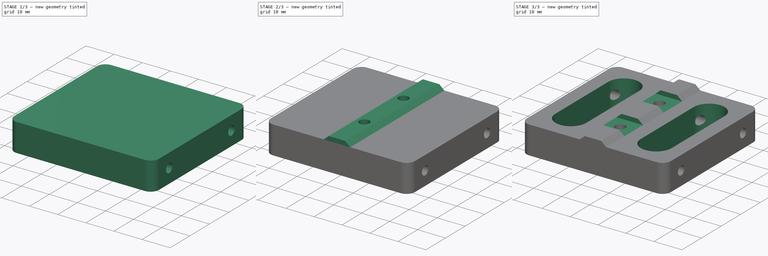
[diagram: build sequence overview — one tinted view per stage of 3, left to right]
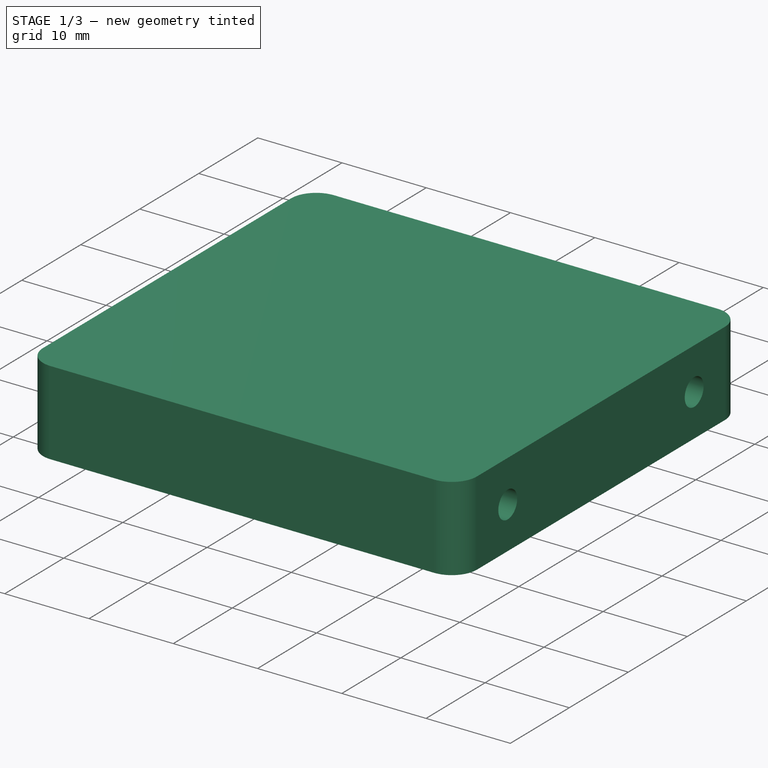
[diagram: stage 1 of 3 — iso view after this stage's code; geometry added in this stage tinted green]
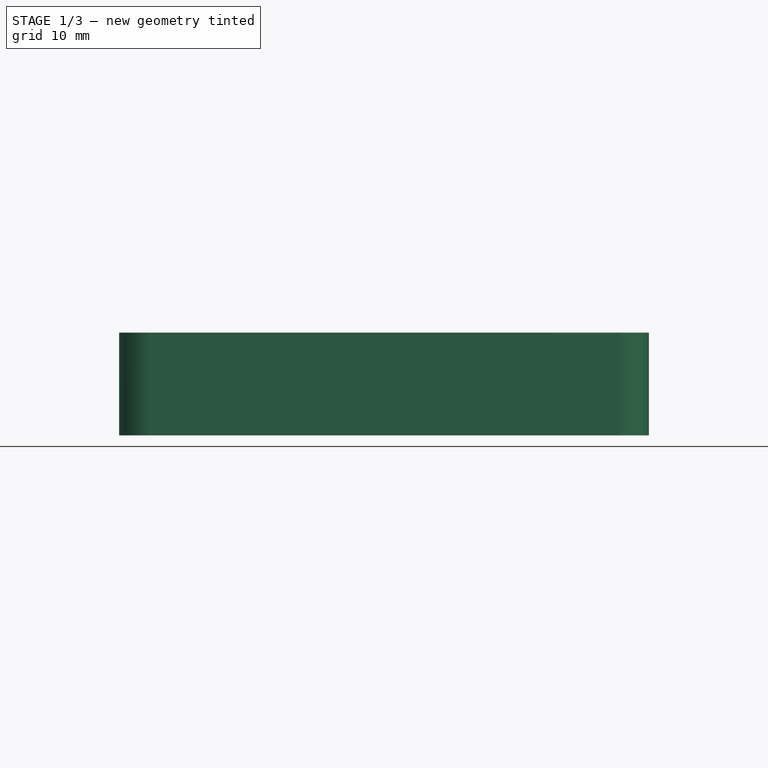
[diagram: stage 1 of 3 — front view after this stage's code; geometry added in this stage tinted green]
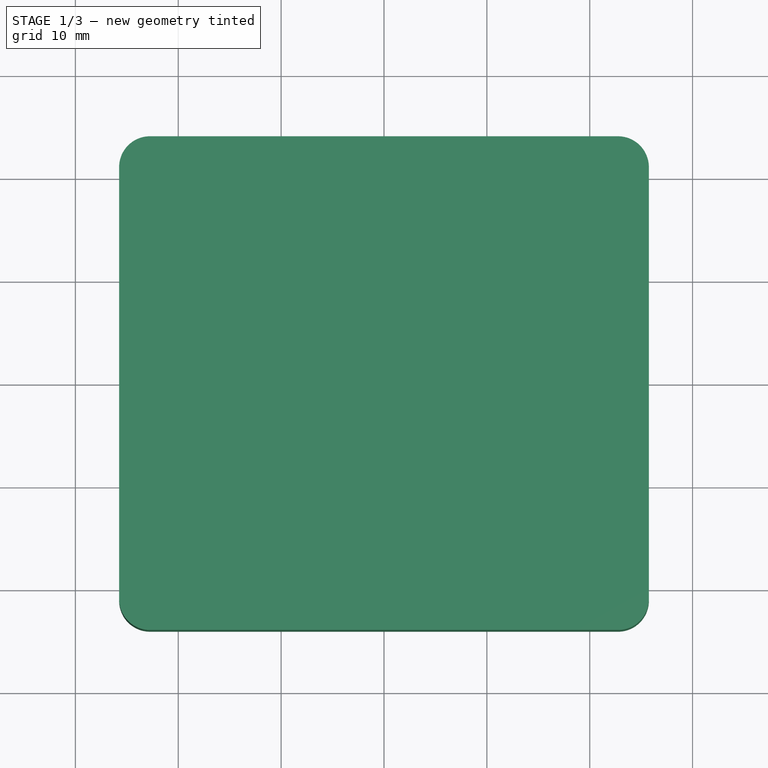
[diagram: stage 1 of 3 — top view after this stage's code; geometry added in this stage tinted green]
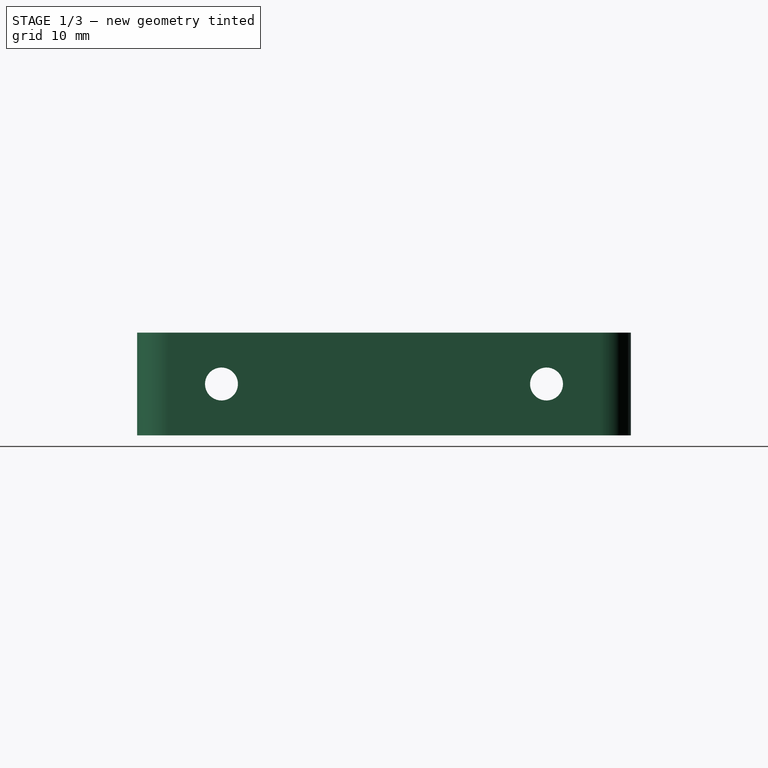
[diagram: stage 1 of 3 — right view after this stage's code; geometry added in this stage tinted green]
FCSTD DOCUMENT  (FreeCAD 1.0R39109 (Git))
Label: base-fixadora
License: All rights reserved
LicenseURL: https://en.wikipedia.org/wiki/All_rights_reserved
objects: Sketcher::SketchObject×8, PartDesign::Pocket×5, PartDesign::Pad×2, PartDesign::Fillet×1, PartDesign::Body×1
note: 41 computed .brp shape members not serialized (recipe doc carries the construction recipe); baked Part::Feature solids carry a one-line shape summary decoded from their .brp

FEATURE [Sketcher::SketchObject] Sketch
  ArcFitTolerance = 0
  AttachmentSupport = -> [XY_Plane]
  FullyConstrained = true
  MakeInternals = false
  MapMode = 5
  sketch-geometry (4):
    g0: LineSegment StartX=-25.75 StartY=24 StartZ=0 EndX=25.75 EndY=24 EndZ=0
    g1: LineSegment StartX=25.75 StartY=24 StartZ=0 EndX=25.75 EndY=-24 EndZ=0
    g2: LineSegment StartX=25.75 StartY=-24 StartZ=0 EndX=-25.75 EndY=-24 EndZ=0
    g3: LineSegment StartX=-25.75 StartY=-24 StartZ=0 EndX=-25.75 EndY=24 EndZ=0
  constraints (10):
    c: Coincident(g0,g1)
    c: Coincident(g1,g2)
    c: Coincident(g2,g3)
    c: Coincident(g3,g0)
    c: Horizontal(g2)
    c: Vertical(g1)
    c: Symmetric(g0,g0,g-2)
    c: Symmetric(g0,g2,g-1)
    c: DistanceX(g2,g2) = 51.5
    c: DistanceY(g3,g3) = 48
FEATURE [PartDesign::Pad] Pad
  Direction = (0,0,1)
  Length = 10
  Length2 = 10
  Profile = -> Sketch
  ReferenceAxis = -> Sketch [N_Axis]
  Suppressed = false
  Type = 0
FEATURE [Sketcher::SketchObject] Sketch001
  ArcFitTolerance = 0
  AttachmentSupport = -> [Pad]
  ExternalGeometry = -> [Pad]
  FullyConstrained = true
  MakeInternals = false
  MapMode = 5
  Placement = pos=(-25.75,0,0) rot=(0.57735,-0.57735,-0.57735;2.0944rad)
  sketch-geometry (3):
    g0: Circle CenterX=-15.8 CenterY=5 CenterZ=0 NormalX=0 NormalY=0 NormalZ=1 AngleXU=0 Radius=1.6
    g1: Circle CenterX=15.8 CenterY=5 CenterZ=0 NormalX=0 NormalY=0 NormalZ=1 AngleXU=0 Radius=1.6
    g2: Circle [constr] CenterX=-15.8 CenterY=5 CenterZ=0 NormalX=0 NormalY=0 NormalZ=1 AngleXU=0 Radius=5
  constraints (7):
    c: Coincident(g2,g0)
    c: Tangent(g2,g-6)
    c: Tangent(g2,g-5)
    c: Symmetric(g0,g1,g-2)
    c: Equal(g1,g0)
    c: Diameter(g1) = 3.2
    c: DistanceX(g0,g1) = 31.6
FEATURE [PartDesign::Pocket] Pocket
  BaseFeature = -> Pad
  Direction = (1,0,0)
  Length = 5
  Length2 = 5
  Profile = -> Sketch001
  ReferenceAxis = -> Sketch001 [N_Axis]
  Suppressed = false
  Type = 1
FEATURE [PartDesign::Fillet] Fillet
  Base = -> Pocket [Edge12,Edge2,Edge1,Edge5]
  BaseFeature = -> Pocket
  Radius = 3
  SupportTransform = false
  Suppressed = false
  UseAllEdges = false
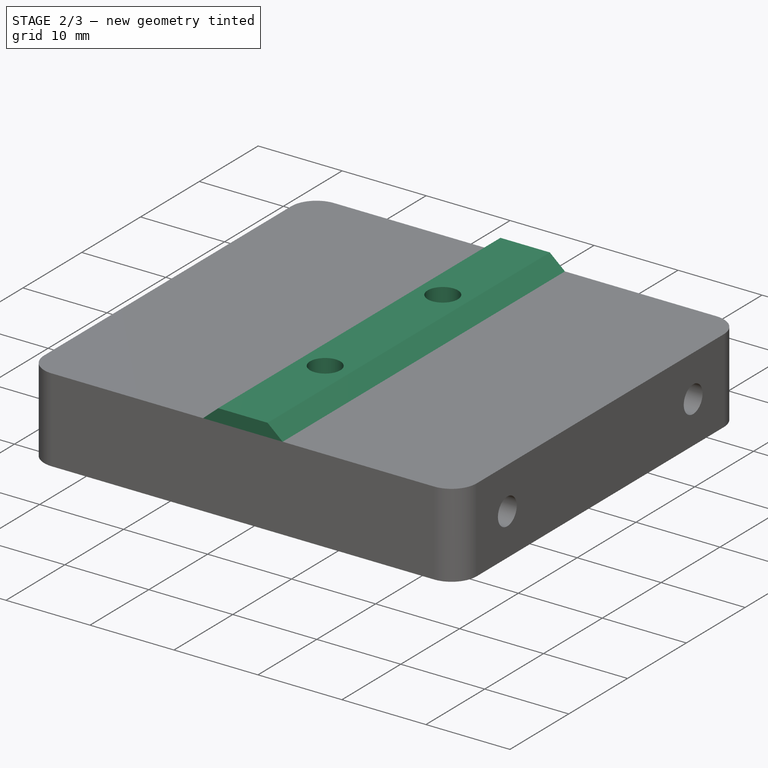
[diagram: stage 2 of 3 — iso view after this stage's code; geometry added in this stage tinted green]
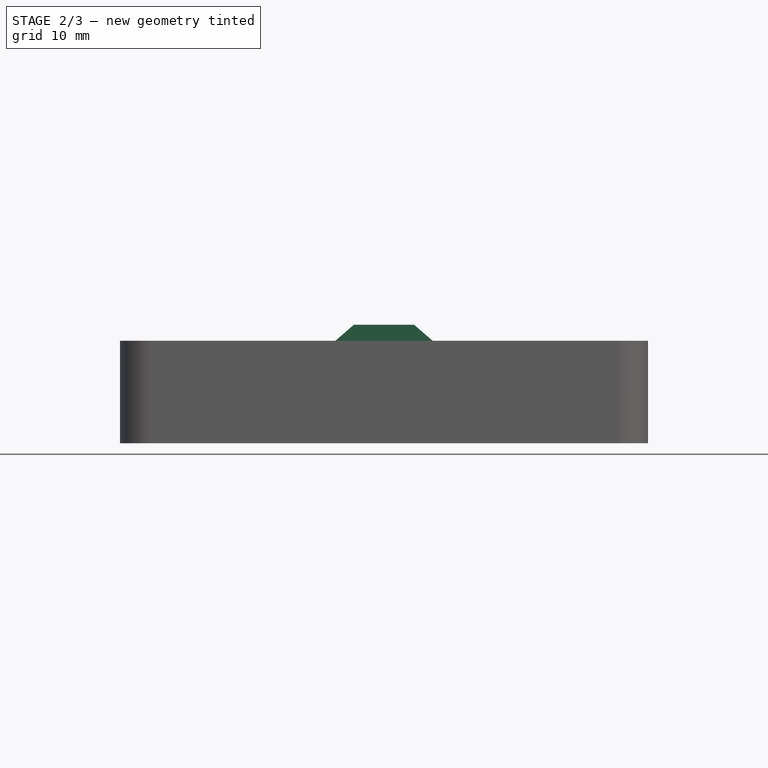
[diagram: stage 2 of 3 — front view after this stage's code; geometry added in this stage tinted green]
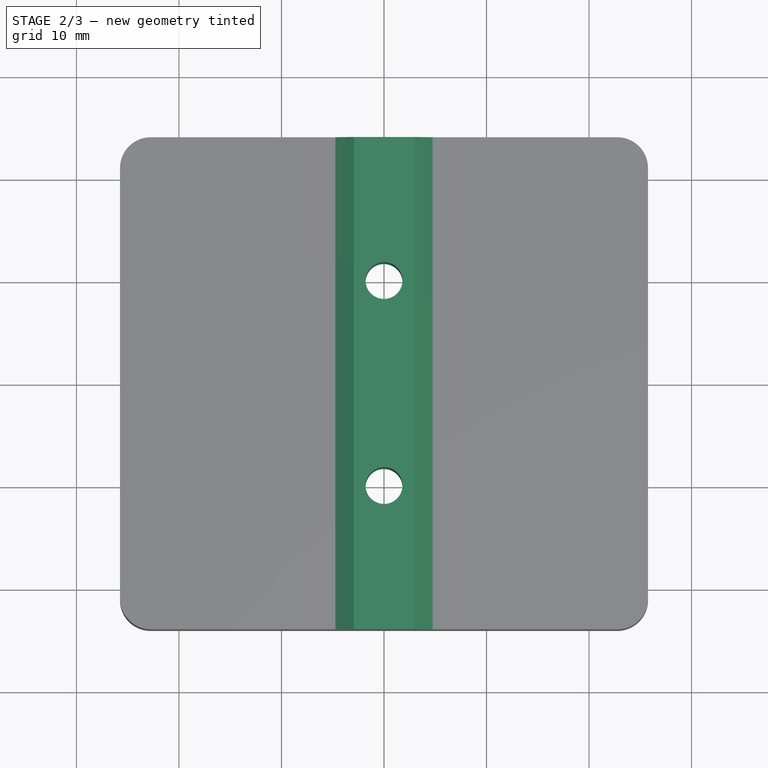
[diagram: stage 2 of 3 — top view after this stage's code; geometry added in this stage tinted green]
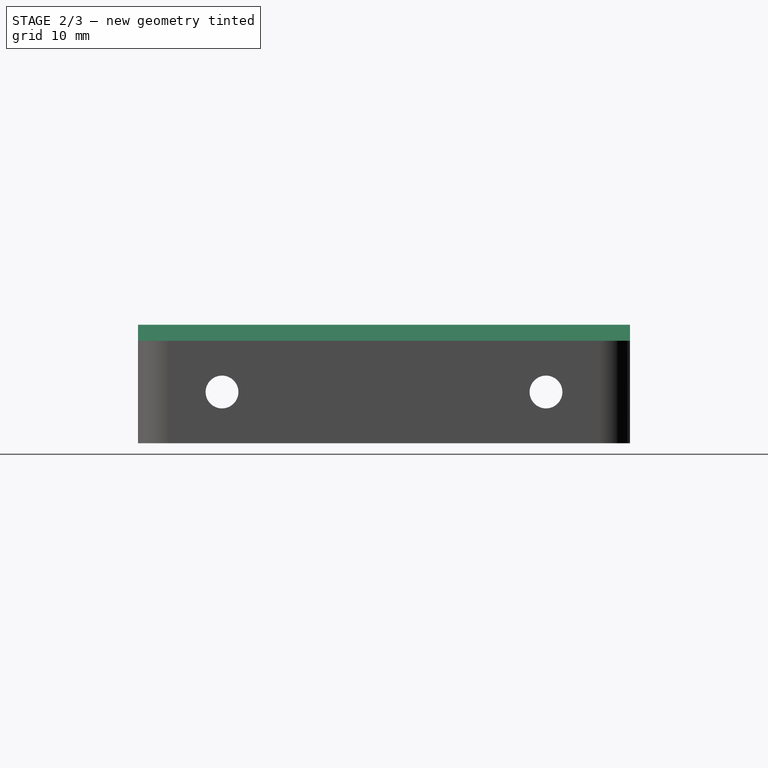
[diagram: stage 2 of 3 — right view after this stage's code; geometry added in this stage tinted green]
FEATURE [Sketcher::SketchObject] Sketch002
  ArcFitTolerance = 0
  AttachmentSupport = -> [Fillet]
  ExternalGeometry = -> [Fillet]
  FullyConstrained = true
  MakeInternals = false
  MapMode = 5
  Placement = pos=(0,24,0) rot=(0,0.707107,0.707107;3.14159rad)
  sketch-geometry (4):
    g0: LineSegment StartX=2.94 StartY=11.56 StartZ=0 EndX=-2.94 EndY=11.56 EndZ=0
    g1: LineSegment StartX=-2.94 StartY=11.56 StartZ=0 EndX=-4.74 EndY=10 EndZ=0
    g2: LineSegment StartX=-4.74 StartY=10 StartZ=0 EndX=4.74 EndY=10 EndZ=0
    g3: LineSegment StartX=4.74 StartY=10 StartZ=0 EndX=2.94 EndY=11.56 EndZ=0
  constraints (10):
    c: Coincident(g0,g1)
    c: Coincident(g1,g2)
    c: Coincident(g2,g3)
    c: Coincident(g3,g0)
    c: Symmetric(g0,g0,g-2)
    c: Symmetric(g1,g2,g-2)
    c: PointOnObject(g1,g-3)
    c: DistanceX(g0,g0) = 5.88
    c: DistanceX(g2,g2) = 9.48
    c: DistanceY(g1,g0) = 1.56
FEATURE [PartDesign::Pad] Pad001
  BaseFeature = -> Fillet
  Direction = (0,1,-2e-16)
  Length = 10
  Length2 = 10
  Profile = -> Sketch002
  ReferenceAxis = -> Sketch002 [N_Axis]
  Suppressed = false
  Type = 3
  UpToFace = -> Fillet [Face10]
FEATURE [Sketcher::SketchObject] Sketch003
  ArcFitTolerance = 0
  AttachmentSupport = -> [Pad001]
  ExternalGeometry = -> [Pad001]
  FullyConstrained = true
  MakeInternals = false
  MapMode = 5
  Placement = pos=(0,2.6e-15,11.56) rot=(0,0,1;0rad)
  sketch-geometry (2):
    g0: Circle CenterX=0 CenterY=10 CenterZ=0 NormalX=0 NormalY=0 NormalZ=1 AngleXU=0 Radius=1.8
    g1: Circle CenterX=0 CenterY=-10 CenterZ=0 NormalX=0 NormalY=0 NormalZ=1 AngleXU=0 Radius=1.8
  constraints (6):
    c: DistanceY(g-4,g-3) = 48
    c: Symmetric(g1,g0,g-1)
    c: PointOnObject(g0,g-2)
    c: Equal(g0,g1)
    c: Diameter(g0) = 3.6
    c: DistanceY(g1,g0) = 20
FEATURE [PartDesign::Pocket] Pocket001
  BaseFeature = -> Pad001
  Direction = (0,0,-1)
  Length = 5
  Length2 = 5
  Profile = -> Sketch003
  ReferenceAxis = -> Sketch003 [N_Axis]
  Suppressed = false
  Type = 1
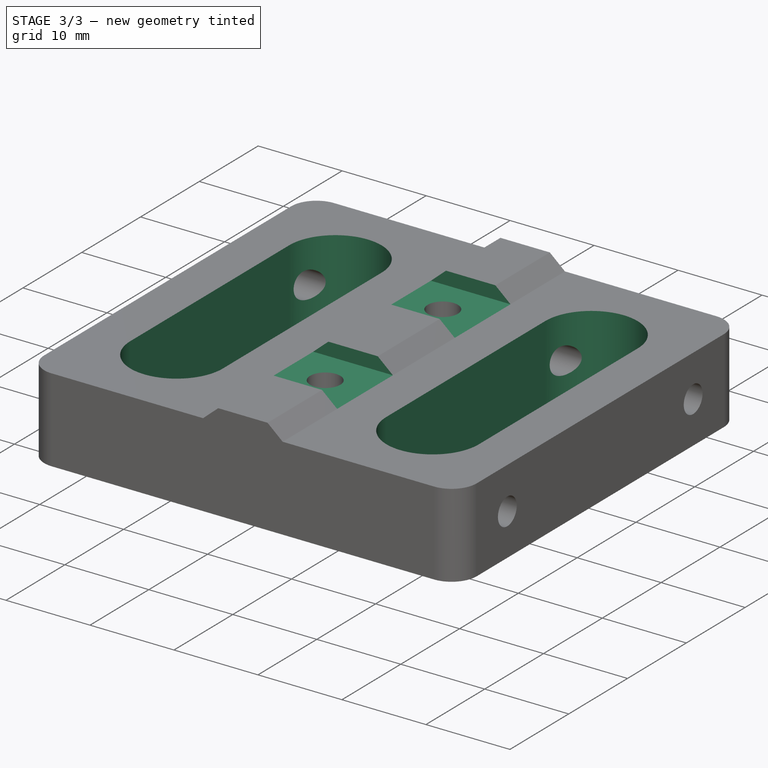
[diagram: stage 3 of 3 — iso view after this stage's code; geometry added in this stage tinted green]
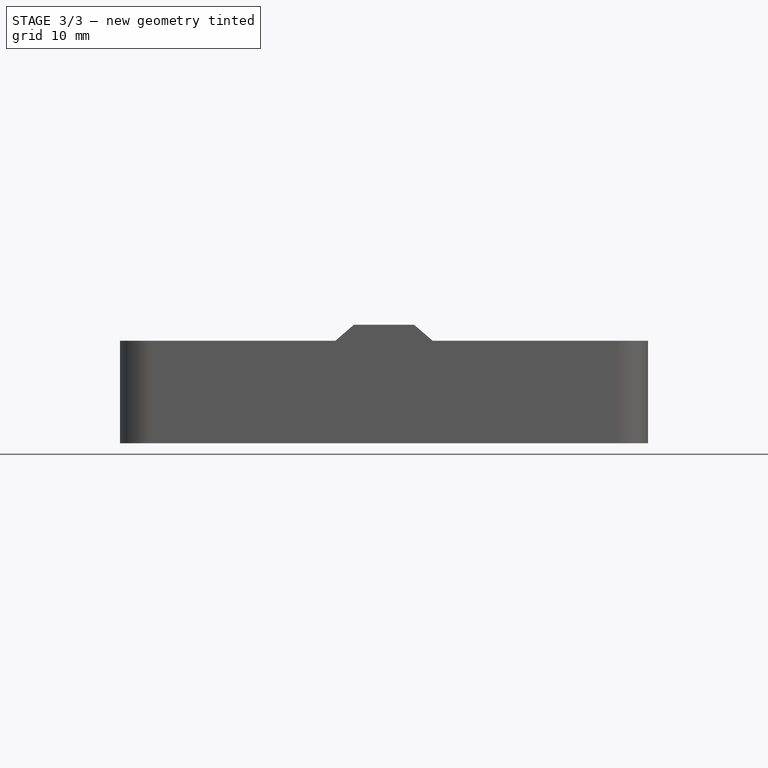
[diagram: stage 3 of 3 — front view after this stage's code; geometry added in this stage tinted green]
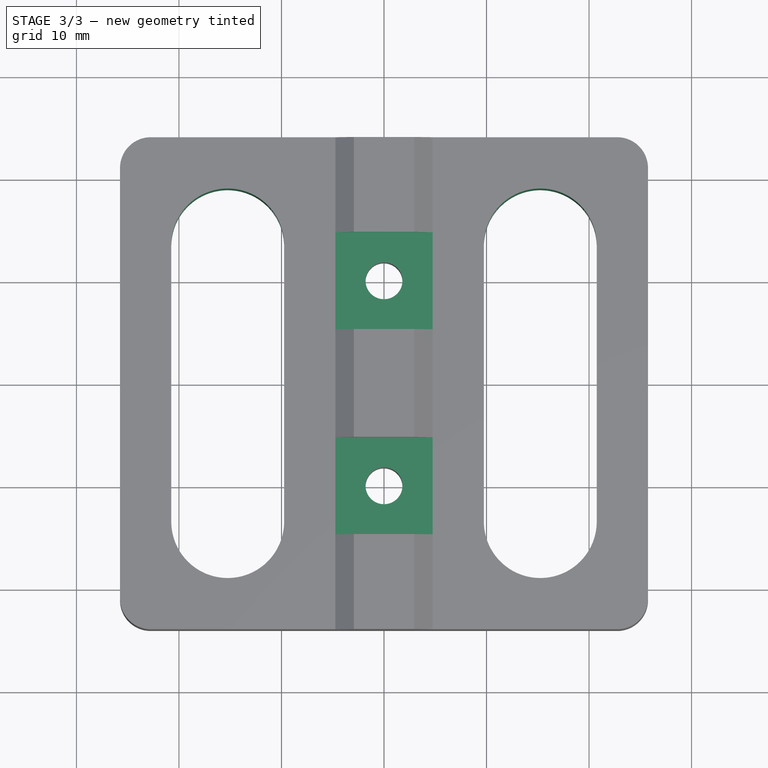
[diagram: stage 3 of 3 — top view after this stage's code; geometry added in this stage tinted green]
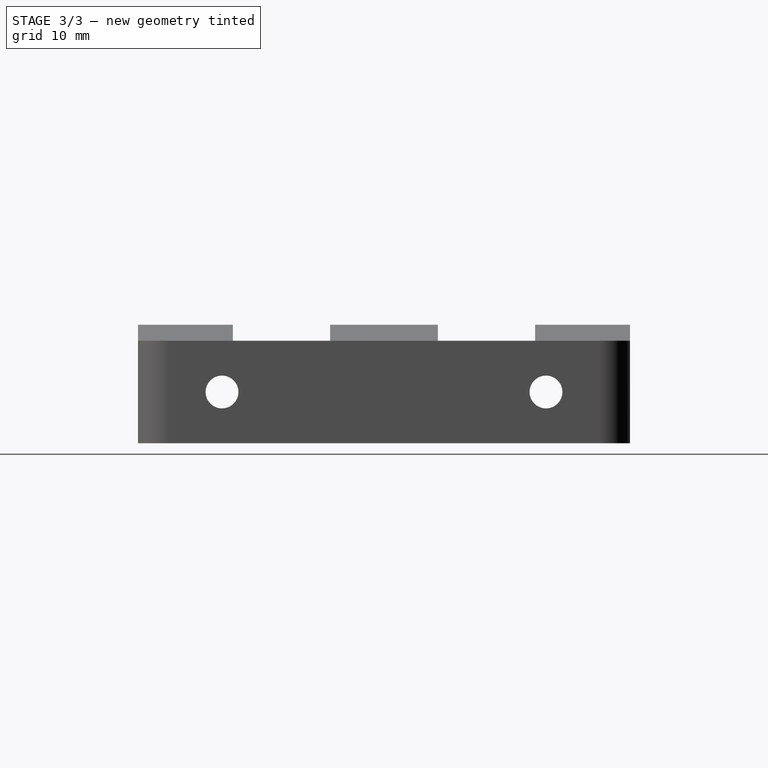
[diagram: stage 3 of 3 — right view after this stage's code; geometry added in this stage tinted green]
FEATURE [Sketcher::SketchObject] Sketch004
  ArcFitTolerance = 0
  AttachmentSupport = -> [Pocket001]
  ExternalGeometry = -> [Pocket001]
  FullyConstrained = true
  MakeInternals = false
  MapMode = 5
  Placement = pos=(0,0,0) rot=(1,0,0;3.14159rad)
  sketch-geometry (2):
    g0: Circle CenterX=0 CenterY=10 CenterZ=0 NormalX=0 NormalY=0 NormalZ=1 AngleXU=0 Radius=2.8
    g1: Circle CenterX=0 CenterY=-10 CenterZ=0 NormalX=0 NormalY=0 NormalZ=1 AngleXU=0 Radius=2.8
  constraints (4):
    c: Coincident(g0,g-3)
    c: Coincident(g1,g-4)
    c: Equal(g1,g0)
    c: Diameter(g0) = 5.6
FEATURE [PartDesign::Pocket] Pocket002
  BaseFeature = -> Pocket001
  Direction = (0,0,1)
  Length = 3
  Length2 = 5
  Profile = -> Sketch004
  ReferenceAxis = -> Sketch004 [N_Axis]
  Suppressed = false
  Type = 0
FEATURE [Sketcher::SketchObject] Sketch005
  ArcFitTolerance = 0
  AttachmentSupport = -> [Pocket002]
  ExternalGeometry = -> [Pocket002]
  FullyConstrained = true
  MakeInternals = false
  MapMode = 5
  Placement = pos=(0,2.6e-15,11.56) rot=(0,0,1;0rad)
  sketch-geometry (10):
    g0: LineSegment StartX=-4.74 StartY=14.74 StartZ=0 EndX=4.74 EndY=14.74 EndZ=0
    g1: LineSegment StartX=4.74 StartY=14.74 StartZ=0 EndX=4.74 EndY=5.26 EndZ=0
    g2: LineSegment StartX=4.74 StartY=5.26 StartZ=0 EndX=-4.74 EndY=5.26 EndZ=0
    g3: LineSegment StartX=-4.74 StartY=5.26 StartZ=0 EndX=-4.74 EndY=14.74 EndZ=0
    g4: LineSegment StartX=-4.74 StartY=-5.26 StartZ=0 EndX=4.74 EndY=-5.26 EndZ=0
    g5: LineSegment StartX=4.74 StartY=-5.26 StartZ=0 EndX=4.74 EndY=-14.74 EndZ=0
    g6: LineSegment StartX=4.74 StartY=-14.74 StartZ=0 EndX=-4.74 EndY=-14.74 EndZ=0
    g7: LineSegment StartX=-4.74 StartY=-14.74 StartZ=0 EndX=-4.74 EndY=-5.26 EndZ=0
    g8: Circle [constr] CenterX=0 CenterY=10 CenterZ=0 NormalX=0 NormalY=0 NormalZ=1 AngleXU=0 Radius=4.74
    g9: Circle [constr] CenterX=0 CenterY=-10 CenterZ=0 NormalX=0 NormalY=0 NormalZ=1 AngleXU=0 Radius=4.74
  constraints (28):
    c: Coincident(g0,g1)
    c: Coincident(g1,g2)
    c: Coincident(g2,g3)
    c: Coincident(g3,g0)
    c: Horizontal(g0)
    c: Horizontal(g2)
    c: Vertical(g1)
    c: Vertical(g3)
    c: Coincident(g4,g5)
    c: Coincident(g5,g6)
    c: Coincident(g6,g7)
    c: Coincident(g7,g4)
    c: Horizontal(g4)
    c: Horizontal(g6)
    c: Vertical(g5)
    c: Vertical(g7)
    c: PointOnObject(g4,g-3)
    c: PointOnObject(g5,g-4)
    c: PointOnObject(g0,g-3)
    c: PointOnObject(g1,g-4)
    c: Coincident(g9,g-6)
    c: Coincident(g8,g-5)
    c: Tangent(g8,g1)
    c: Tangent(g0,g8)
    c: Tangent(g2,g8)
    c: Tangent(g9,g4)
    c: Tangent(g5,g9)
    c: Tangent(g6,g9)
FEATURE [PartDesign::Pocket] Pocket003
  BaseFeature = -> Pocket002
  Direction = (0,0,-1)
  Length = 0
  Length2 = 5
  Profile = -> Sketch005
  ReferenceAxis = -> Sketch005 [N_Axis]
  Suppressed = false
  Type = 3
  UpToFace = -> Pocket002 [Face7]
FEATURE [Sketcher::SketchObject] Sketch006
  ArcFitTolerance = 0
  AttachmentSupport = -> [Pocket003]
  ExternalGeometry = -> [Pocket003]
  FullyConstrained = true
  MakeInternals = false
  MapMode = 5
  Placement = pos=(0,0,10) rot=(0,0,1;0rad)
  sketch-geometry (12):
    g0: ArcOfCircle CenterX=-15.245 CenterY=13.495 CenterZ=0 NormalX=0 NormalY=0 NormalZ=1 AngleXU=0 Radius=5.505 StartAngle=0 EndAngle=3.14159
    g1: ArcOfCircle CenterX=-15.245 CenterY=-13.495 CenterZ=0 NormalX=0 NormalY=0 NormalZ=1 AngleXU=0 Radius=5.505 StartAngle=3.14159 EndAngle=6.28319
    g2: LineSegment StartX=-20.75 StartY=13.495 StartZ=0 EndX=-20.75 EndY=-13.495 EndZ=0
    g3: LineSegment StartX=-9.74 StartY=-13.495 StartZ=0 EndX=-9.74 EndY=13.495 EndZ=0
    g4: ArcOfCircle CenterX=15.245 CenterY=13.495 CenterZ=0 NormalX=0 NormalY=0 NormalZ=1 AngleXU=0 Radius=5.505 StartAngle=1e-16 EndAngle=3.14159
    g5: ArcOfCircle CenterX=15.245 CenterY=-13.495 CenterZ=0 NormalX=0 NormalY=0 NormalZ=1 AngleXU=0 Radius=5.505 StartAngle=3.14159 EndAngle=6.28319
    g6: LineSegment StartX=9.74 StartY=13.495 StartZ=0 EndX=9.74 EndY=-13.495 EndZ=0
    g7: LineSegment StartX=20.75 StartY=-13.495 StartZ=0 EndX=20.75 EndY=13.495 EndZ=0
    g8: LineSegment [constr] StartX=-20.75 StartY=19 StartZ=0 EndX=20.75 EndY=19 EndZ=0
    g9: LineSegment [constr] StartX=20.75 StartY=19 StartZ=0 EndX=20.75 EndY=-19 EndZ=0
    g10: LineSegment [constr] StartX=20.75 StartY=-19 StartZ=0 EndX=-20.75 EndY=-19 EndZ=0
    g11: LineSegment [constr] StartX=-20.75 StartY=-19 StartZ=0 EndX=-20.75 EndY=19 EndZ=0
  constraints (30):
    c: Tangent(g0,g2) = -1.5708
    c: Tangent(g2,g1) = -1.5708
    c: Tangent(g1,g3) = -1.5708
    c: Tangent(g3,g0) = -1.5708
    c: Equal(g0,g1)
    c: Vertical(g2)
    c: Tangent(g4,g6) = -1.5708
    c: Tangent(g6,g5) = -1.5708
    c: Tangent(g5,g7) = -1.5708
    c: Tangent(g7,g4) = -1.5708
    c: Equal(g4,g5)
    c: Vertical(g6)
    c: Equal(g4,g0)
    c: Coincident(g8,g9)
    c: Coincident(g9,g10)
    c: Coincident(g10,g11)
    c: Coincident(g11,g8)
    c: Horizontal(g8)
    c: Vertical(g9)
    c: Tangent(g0,g11)
    c: Tangent(g0,g8)
    c: Tangent(g1,g10)
    c: Tangent(g5,g9)
    c: Tangent(g5,g10)
    c: Tangent(g4,g8)
    c: Symmetric(g8,g10,g-1)
    c: Symmetric(g10,g9,g-2)
    c: DistanceX(g-3,g8) = 5
    c: DistanceY(g8,g-4) = 5
    c: DistanceX(g-5,g4) = 5
FEATURE [PartDesign::Pocket] Pocket004
  BaseFeature = -> Pocket003
  Direction = (0,0,-1)
  Length = 5
  Length2 = 5
  Profile = -> Sketch006
  ReferenceAxis = -> Sketch006 [N_Axis]
  Suppressed = false
  Type = 1
FEATURE [Sketcher::SketchObject] Sketch007
  ArcFitTolerance = 1e-06
  AttachmentSupport = -> [Pocket004]
  ExternalGeometry = -> [Pocket004]
  FullyConstrained = true
  MakeInternals = false
  MapMode = 5
  Placement = pos=(25.75,0,0) rot=(0.57735,0.57735,0.57735;2.0944rad)
  constraints (2):
    c: DistanceX(g-3,g-4) = 31.6
    c: Distance(g-5,g-6) = 10
FEATURE [PartDesign::Body] Body
  AllowCompound = false
  Group = -> [Sketch,Pad,Sketch001,Pocket,Fillet,Sketch002,Pad001,Sketch003,Pocket001,Sketch004,Pocket002,Sketch005,Pocket003,Sketch006,Pocket004,Sketch007]
  Origin = -> Origin
  Tip = -> Pocket004
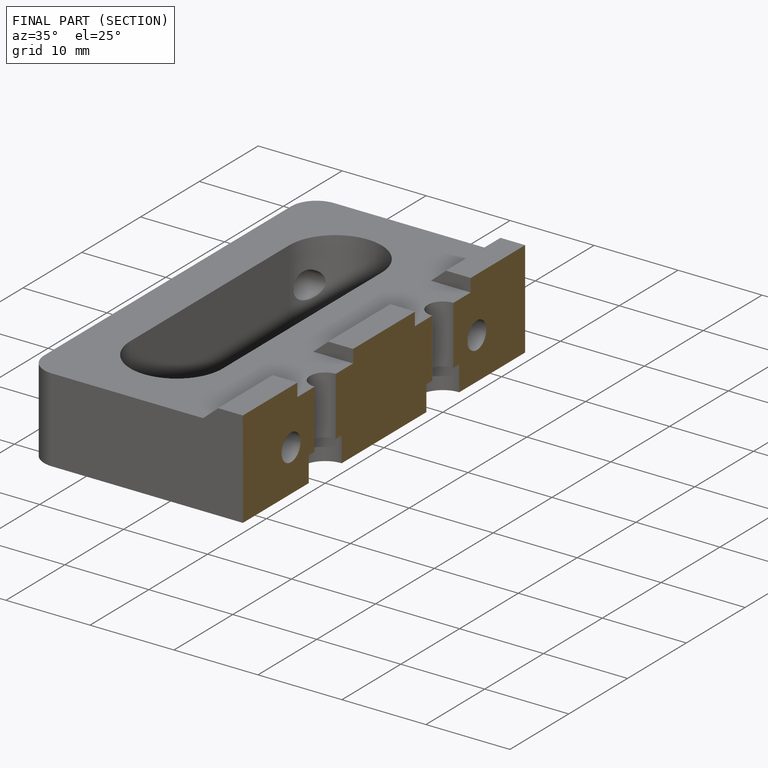
[diagram: finished part — half-section view (interior)]
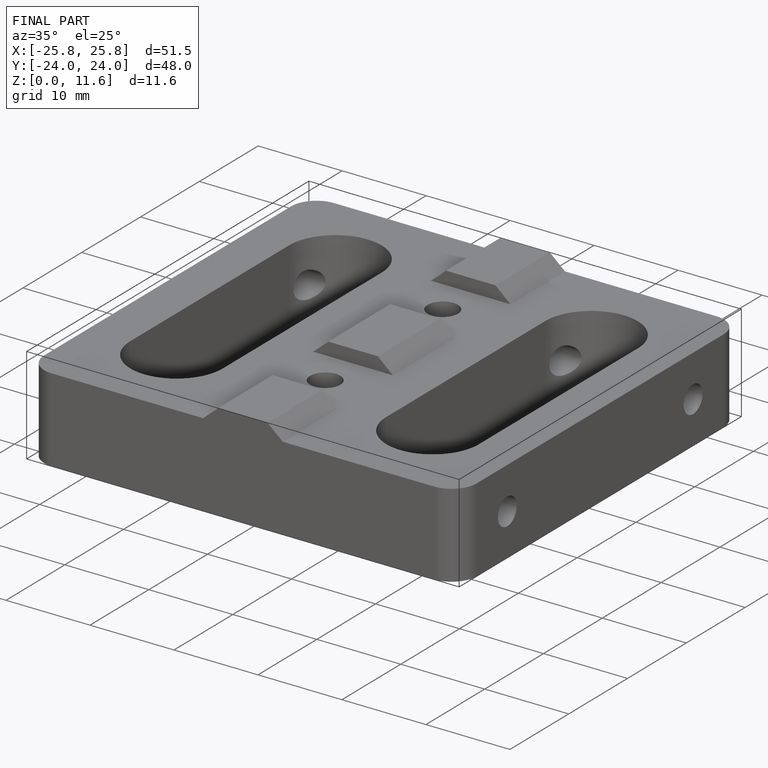
[diagram: finished part — iso view with bounding-box wireframe]
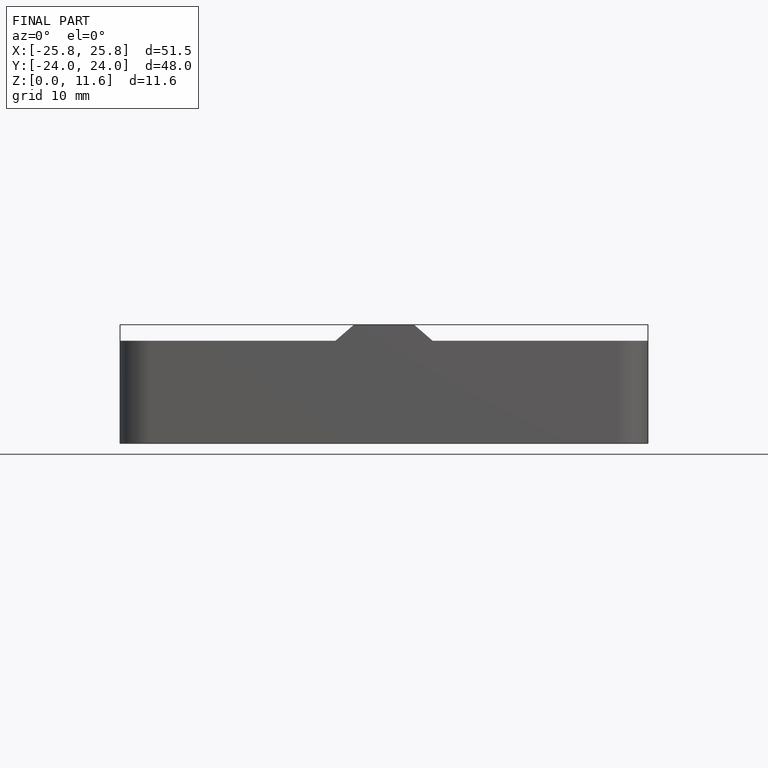
[diagram: finished part — front view with bounding-box wireframe]
